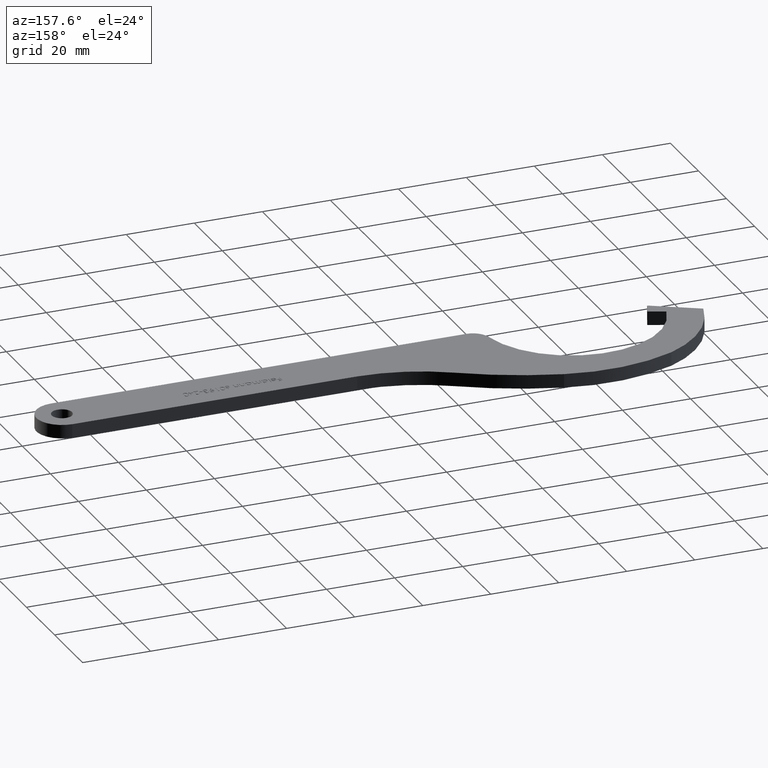
[diagram: clean part render]
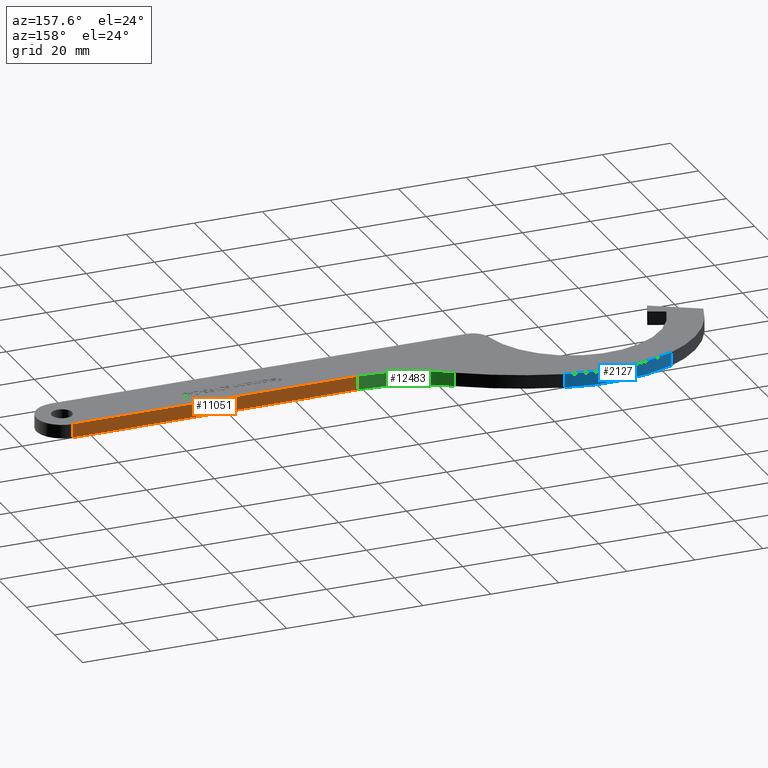
[diagram: same view with three faces highlighted in distinct colors, each labeled with its STEP entity id]
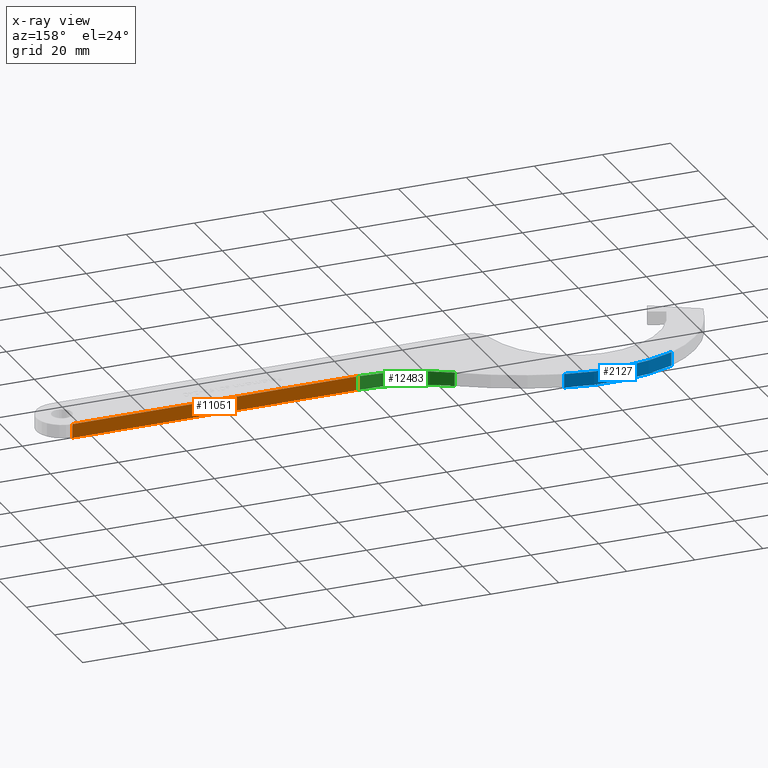
[diagram: x-ray of the same camera — body ghosted, the three highlighted faces saturated]
A machine part, auxiliary view with three faces highlighted in distinct colors.
The next image is the same camera in x-ray (body ghosted, the three faces saturated) — at least one of them is partly hidden behind the body in this view.
Their STEP definitions:

[orange] entity #11051 — the highlighted planar face has unit normal (0, -1, 0).
#71 = EDGE_CURVE ( 'NONE', #9149, #2086, #11838, .T. ) ;
#572 = DIRECTION ( 'NONE',  ( 6.585814548273367700E-015, -1.000000000000000000, 0.0000000000000000000 ) ) ;
#1370 = EDGE_CURVE ( 'NONE', #5121, #9149, #9594, .T. ) ;
#1529 = AXIS2_PLACEMENT_3D ( 'NONE', #7880, #572, #7718 ) ;
#1822 = CARTESIAN_POINT ( 'NONE',  ( 104.0601152625872200, 6.152210837305458900, 4.000000000000000000 ) ) ;
#2063 = CARTESIAN_POINT ( 'NONE',  ( 187.8222773030065300, 6.152210837306011400, 4.000000000000000000 ) ) ;
#2086 = VERTEX_POINT ( 'NONE', #6271 ) ;
#2107 = CARTESIAN_POINT ( 'NONE',  ( 187.8222773030065300, 6.152210837306011400, 4.000000000000000000 ) ) ;
#2561 = CARTESIAN_POINT ( 'NONE',  ( 104.0601152625872200, 6.152210837305487300, 4.000000000000000000 ) ) ;
#3815 = VERTEX_POINT ( 'NONE', #2561 ) ;
#3951 = LINE ( 'NONE', #10194, #9061 ) ;
#4659 = VECTOR ( 'NONE', #11746, 1000.000000000000000 ) ;
#4866 = DIRECTION ( 'NONE',  ( -1.000000000000000000, -6.585814548273367700E-015, -0.0000000000000000000 ) ) ;
#5121 = VERTEX_POINT ( 'NONE', #2107 ) ;
#5696 = PLANE ( 'NONE',  #1529 ) ;
#5823 = EDGE_CURVE ( 'NONE', #3815, #2086, #3951, .T. ) ;
#5920 = VECTOR ( 'NONE', #4866, 1000.000000000000000 ) ;
#6271 = CARTESIAN_POINT ( 'NONE',  ( 104.0601152625872200, 6.152210837305487300, 0.0000000000000000000 ) ) ;
#6444 = ORIENTED_EDGE ( 'NONE', *, *, #11172, .F. ) ;
#7442 = ORIENTED_EDGE ( 'NONE', *, *, #71, .T. ) ;
#7718 = DIRECTION ( 'NONE',  ( 1.000000000000000000, 6.585814548273367700E-015, 0.0000000000000000000 ) ) ;
#7827 = EDGE_LOOP ( 'NONE', ( #7442, #10752, #6444, #9709 ) ) ;
#7880 = CARTESIAN_POINT ( 'NONE',  ( 104.0601152625872200, 6.152210837305458900, 4.000000000000000000 ) ) ;
#8121 = DIRECTION ( 'NONE',  ( -0.0000000000000000000, -0.0000000000000000000, -1.000000000000000000 ) ) ;
#8923 = CARTESIAN_POINT ( 'NONE',  ( 187.8222773030065300, 6.152210837306011400, 0.0000000000000000000 ) ) ;
#8994 = LINE ( 'NONE', #1822, #5920 ) ;
#9061 = VECTOR ( 'NONE', #13030, 1000.000000000000000 ) ;
#9149 = VERTEX_POINT ( 'NONE', #8923 ) ;
#9594 = LINE ( 'NONE', #2063, #10705 ) ;
#9709 = ORIENTED_EDGE ( 'NONE', *, *, #1370, .T. ) ;
#10194 = CARTESIAN_POINT ( 'NONE',  ( 104.0601152625872200, 6.152210837305487300, 4.000000000000000000 ) ) ;
#10409 = FACE_OUTER_BOUND ( 'NONE', #7827, .T. ) ;
#10705 = VECTOR ( 'NONE', #8121, 1000.000000000000000 ) ;
#10752 = ORIENTED_EDGE ( 'NONE', *, *, #5823, .F. ) ;
#11051 = ADVANCED_FACE ( 'NONE', ( #10409 ), #5696, .F. ) ;
#11172 = EDGE_CURVE ( 'NONE', #5121, #3815, #8994, .T. ) ;
#11746 = DIRECTION ( 'NONE',  ( -1.000000000000000000, -6.585814548273367700E-015, -0.0000000000000000000 ) ) ;
#11838 = LINE ( 'NONE', #12481, #4659 ) ;
#12481 = CARTESIAN_POINT ( 'NONE',  ( 104.0601152625872200, 6.152210837305458900, 0.0000000000000000000 ) ) ;
#13030 = DIRECTION ( 'NONE',  ( -0.0000000000000000000, -0.0000000000000000000, -1.000000000000000000 ) ) ;

[blue] entity #2127 — the highlighted cylindrical surface (partial cylindrical patch) has radius 48.8621 mm, axis along (-0, -0, -1).
#43 = CARTESIAN_POINT ( 'NONE',  ( 51.48575686670986300, 26.17698984142013400, 4.000000000000000000 ) ) ;
#283 = ORIENTED_EDGE ( 'NONE', *, *, #4916, .F. ) ;
#947 = FACE_OUTER_BOUND ( 'NONE', #10209, .T. ) ;
#1346 = CARTESIAN_POINT ( 'NONE',  ( 51.48575686670986300, 26.17698984142013400, 4.000000000000000000 ) ) ;
#1633 = CARTESIAN_POINT ( 'NONE',  ( 18.95372916265420900, 23.76777367746013800, 4.000000000000000000 ) ) ;
#2124 = EDGE_CURVE ( 'NONE', #12696, #10125, #3677, .T. ) ;
#2127 = ADVANCED_FACE ( 'NONE', ( #947 ), #10851, .T. ) ;
#2341 = CIRCLE ( 'NONE', #5838, 48.86211000180907900 ) ;
#2513 = VECTOR ( 'NONE', #7400, 1000.000000000000000 ) ;
#2614 = DIRECTION ( 'NONE',  ( 1.000000000000000000, 0.0000000000000000000, 0.0000000000000000000 ) ) ;
#3123 = DIRECTION ( 'NONE',  ( 0.0000000000000000000, 0.0000000000000000000, 1.000000000000000000 ) ) ;
#3131 = AXIS2_PLACEMENT_3D ( 'NONE', #11386, #8296, #7325 ) ;
#3246 = CARTESIAN_POINT ( 'NONE',  ( 18.95372916265420900, 23.76777367746013800, 4.000000000000000000 ) ) ;
#3677 = LINE ( 'NONE', #43, #7189 ) ;
#4125 = DIRECTION ( 'NONE',  ( 1.000000000000000000, 0.0000000000000000000, 0.0000000000000000000 ) ) ;
#4384 = EDGE_CURVE ( 'NONE', #5619, #5486, #7477, .T. ) ;
#4916 = EDGE_CURVE ( 'NONE', #12696, #5619, #5538, .T. ) ;
#5375 = EDGE_CURVE ( 'NONE', #10125, #5486, #2341, .T. ) ;
#5486 = VERTEX_POINT ( 'NONE', #11381 ) ;
#5538 = CIRCLE ( 'NONE', #13121, 48.86211000180907900 ) ;
#5619 = VERTEX_POINT ( 'NONE', #1633 ) ;
#5838 = AXIS2_PLACEMENT_3D ( 'NONE', #11418, #3123, #4125 ) ;
#6798 = CARTESIAN_POINT ( 'NONE',  ( 38.62143954868661700, -20.96126568177565000, 4.000000000000000000 ) ) ;
#7189 = VECTOR ( 'NONE', #9334, 1000.000000000000000 ) ;
#7325 = DIRECTION ( 'NONE',  ( -1.000000000000000000, 0.0000000000000000000, 0.0000000000000000000 ) ) ;
#7336 = ORIENTED_EDGE ( 'NONE', *, *, #4384, .F. ) ;
#7400 = DIRECTION ( 'NONE',  ( -0.0000000000000000000, -0.0000000000000000000, -1.000000000000000000 ) ) ;
#7406 = ORIENTED_EDGE ( 'NONE', *, *, #5375, .T. ) ;
#7477 = LINE ( 'NONE', #3246, #2513 ) ;
#8296 = DIRECTION ( 'NONE',  ( -0.0000000000000000000, -0.0000000000000000000, -1.000000000000000000 ) ) ;
#8899 = CARTESIAN_POINT ( 'NONE',  ( 51.48575686670986300, 26.17698984142013400, 0.0000000000000000000 ) ) ;
#9334 = DIRECTION ( 'NONE',  ( -0.0000000000000000000, -0.0000000000000000000, -1.000000000000000000 ) ) ;
#10125 = VERTEX_POINT ( 'NONE', #8899 ) ;
#10209 = EDGE_LOOP ( 'NONE', ( #7406, #7336, #283, #10846 ) ) ;
#10846 = ORIENTED_EDGE ( 'NONE', *, *, #2124, .T. ) ;
#10851 = CYLINDRICAL_SURFACE ( 'NONE', #3131, 48.86211000180907100 ) ;
#11381 = CARTESIAN_POINT ( 'NONE',  ( 18.95372916265420900, 23.76777367746013800, 0.0000000000000000000 ) ) ;
#11386 = CARTESIAN_POINT ( 'NONE',  ( 38.62143954868661700, -20.96126568177565000, 4.000000000000000000 ) ) ;
#11418 = CARTESIAN_POINT ( 'NONE',  ( 38.62143954868661700, -20.96126568177565000, 0.0000000000000000000 ) ) ;
#12696 = VERTEX_POINT ( 'NONE', #1346 ) ;
#12811 = DIRECTION ( 'NONE',  ( 0.0000000000000000000, 0.0000000000000000000, 1.000000000000000000 ) ) ;
#13121 = AXIS2_PLACEMENT_3D ( 'NONE', #6798, #12811, #2614 ) ;

[green] entity #12483 — the highlighted cylindrical surface (partial cylindrical patch) has radius 47.5758 mm, axis along (-0, -0, -1).
#349 = DIRECTION ( 'NONE',  ( -0.0000000000000000000, -0.0000000000000000000, -1.000000000000000000 ) ) ;
#1440 = VERTEX_POINT ( 'NONE', #10319 ) ;
#1853 = DIRECTION ( 'NONE',  ( -0.0000000000000000000, -0.0000000000000000000, -1.000000000000000000 ) ) ;
#1876 = DIRECTION ( 'NONE',  ( -0.0000000000000000000, -0.0000000000000000000, -1.000000000000000000 ) ) ;
#2086 = VERTEX_POINT ( 'NONE', #6271 ) ;
#2561 = CARTESIAN_POINT ( 'NONE',  ( 104.0601152625872200, 6.152210837305487300, 4.000000000000000000 ) ) ;
#3242 = EDGE_CURVE ( 'NONE', #2086, #1440, #11463, .T. ) ;
#3304 = AXIS2_PLACEMENT_3D ( 'NONE', #7984, #1876, #5830 ) ;
#3815 = VERTEX_POINT ( 'NONE', #2561 ) ;
#3951 = LINE ( 'NONE', #10194, #9061 ) ;
#4285 = VERTEX_POINT ( 'NONE', #11223 ) ;
#4501 = EDGE_CURVE ( 'NONE', #3815, #4285, #9552, .T. ) ;
#4612 = DIRECTION ( 'NONE',  ( -1.000000000000000000, 0.0000000000000000000, 0.0000000000000000000 ) ) ;
#4793 = DIRECTION ( 'NONE',  ( -0.0000000000000000000, -0.0000000000000000000, -1.000000000000000000 ) ) ;
#4836 = CYLINDRICAL_SURFACE ( 'NONE', #11131, 47.57583433137929100 ) ;
#5823 = EDGE_CURVE ( 'NONE', #3815, #2086, #3951, .T. ) ;
#5830 = DIRECTION ( 'NONE',  ( 1.000000000000000000, 0.0000000000000000000, 0.0000000000000000000 ) ) ;
#6066 = EDGE_CURVE ( 'NONE', #4285, #1440, #10646, .T. ) ;
#6271 = CARTESIAN_POINT ( 'NONE',  ( 104.0601152625872200, 6.152210837305487300, 0.0000000000000000000 ) ) ;
#6332 = EDGE_LOOP ( 'NONE', ( #10448, #6675, #6624, #6721 ) ) ;
#6465 = CARTESIAN_POINT ( 'NONE',  ( 104.7511706295556600, 53.72302599541090700, 4.000000000000000000 ) ) ;
#6624 = ORIENTED_EDGE ( 'NONE', *, *, #4501, .F. ) ;
#6675 = ORIENTED_EDGE ( 'NONE', *, *, #6066, .F. ) ;
#6721 = ORIENTED_EDGE ( 'NONE', *, *, #5823, .T. ) ;
#7984 = CARTESIAN_POINT ( 'NONE',  ( 104.7511706295556600, 53.72302599541090700, 0.0000000000000000000 ) ) ;
#8078 = AXIS2_PLACEMENT_3D ( 'NONE', #9099, #1853, #9013 ) ;
#9013 = DIRECTION ( 'NONE',  ( 1.000000000000000000, 0.0000000000000000000, 0.0000000000000000000 ) ) ;
#9061 = VECTOR ( 'NONE', #13030, 1000.000000000000000 ) ;
#9099 = CARTESIAN_POINT ( 'NONE',  ( 104.7511706295556600, 53.72302599541090700, 4.000000000000000000 ) ) ;
#9532 = VECTOR ( 'NONE', #4793, 1000.000000000000000 ) ;
#9552 = CIRCLE ( 'NONE', #8078, 47.57583433137929800 ) ;
#10194 = CARTESIAN_POINT ( 'NONE',  ( 104.0601152625872200, 6.152210837305487300, 4.000000000000000000 ) ) ;
#10319 = CARTESIAN_POINT ( 'NONE',  ( 78.67680360765909600, 13.92871237230293400, 0.0000000000000000000 ) ) ;
#10448 = ORIENTED_EDGE ( 'NONE', *, *, #3242, .T. ) ;
#10646 = LINE ( 'NONE', #12932, #9532 ) ;
#11131 = AXIS2_PLACEMENT_3D ( 'NONE', #6465, #349, #4612 ) ;
#11223 = CARTESIAN_POINT ( 'NONE',  ( 78.67680360765909600, 13.92871237230293400, 4.000000000000000000 ) ) ;
#11463 = CIRCLE ( 'NONE', #3304, 47.57583433137929800 ) ;
#11705 = FACE_OUTER_BOUND ( 'NONE', #6332, .T. ) ;
#12483 = ADVANCED_FACE ( 'NONE', ( #11705 ), #4836, .F. ) ;
#12932 = CARTESIAN_POINT ( 'NONE',  ( 78.67680360765909600, 13.92871237230293400, 4.000000000000000000 ) ) ;
#13030 = DIRECTION ( 'NONE',  ( -0.0000000000000000000, -0.0000000000000000000, -1.000000000000000000 ) ) ;